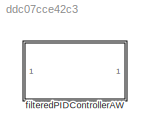
MODEL slx_ddc07cce42c3
KIND library
CONFIG AbsTol = auto
CONFIG EnableMultiTasking = off
CONFIG FixedStep = auto
CONFIG MaxStep = auto
CONFIG MinStep = auto
CONFIG RelTol = 1e-3
CONFIG SampleTimeConstraint = Unconstrained
CONFIG SolverName = VariableStepAuto
CONFIG StartTime = 0.0
CONFIG StopTime = 10.0
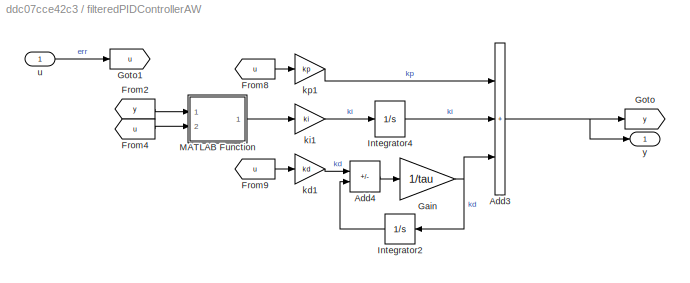
BLOCK [SubSystem] filteredPIDControllerAW
  Ports = [1, 1]
  RequestExecContextInheritance = off
BLOCK [Sum] filteredPIDControllerAW/Add3
  IconShape = rectangular
  Inputs = +++
  Ports = [3, 1]
BLOCK [Sum] filteredPIDControllerAW/Add4
  IconShape = rectangular
  Inputs = +-
  Ports = [2, 1]
BLOCK [From] filteredPIDControllerAW/From2
  GotoTag = y
BLOCK [From] filteredPIDControllerAW/From4
  GotoTag = u
BLOCK [From] filteredPIDControllerAW/From8
  GotoTag = u
BLOCK [From] filteredPIDControllerAW/From9
  GotoTag = u
BLOCK [Gain] filteredPIDControllerAW/Gain
  Gain = 1/tau
BLOCK [Goto] filteredPIDControllerAW/Goto
  GotoTag = y
BLOCK [Goto] filteredPIDControllerAW/Goto1
  GotoTag = u
BLOCK [Integrator] filteredPIDControllerAW/Integrator2
  ContinuousStateAttributes = 'ctrlDerivative'
  Ports = [1, 1]
BLOCK [Integrator] filteredPIDControllerAW/Integrator4
  ContinuousStateAttributes = 'ctrlIntegral'
  Ports = [1, 1]
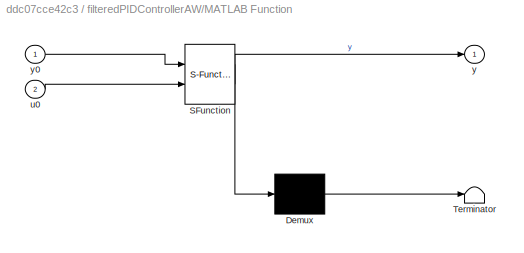
BLOCK [SubSystem] filteredPIDControllerAW/MATLAB Function
  ErrorFcn = Stateflow.Translate.translate
  PermitHierarchicalResolution = ExplicitOnly
  Ports = [2, 1]
  RequestExecContextInheritance = off
  SFBlockType = MATLAB Function
  TreatAsAtomicUnit = on
BLOCK [Demux] filteredPIDControllerAW/MATLAB Function/ Demux 
  Outputs = 1
  Ports = [1, 1]
BLOCK [S-Function] filteredPIDControllerAW/MATLAB Function/ SFunction 
  EnableBusSupport = off
  FunctionName = sf_sfun
  Parameters = cMax,cMin
  PortCounts = [2 2]
  Ports = [2, 2]
  SFcnIsStateOwnerBlock = off
  SFunctionDeploymentMode = off
  Tag = Stateflow S-Function 23
BLOCK [Terminator] filteredPIDControllerAW/MATLAB Function/ Terminator 
BLOCK [Inport] filteredPIDControllerAW/MATLAB Function/u0
  Port = 2
BLOCK [Outport] filteredPIDControllerAW/MATLAB Function/y
BLOCK [Inport] filteredPIDControllerAW/MATLAB Function/y0
BLOCK [Gain] filteredPIDControllerAW/kd1
  Gain = kd
BLOCK [Gain] filteredPIDControllerAW/ki1
  Gain = ki
BLOCK [Gain] filteredPIDControllerAW/kp1
  Gain = kp
BLOCK [Inport] filteredPIDControllerAW/u
  PortDimensions = 1
BLOCK [Outport] filteredPIDControllerAW/y
  PortDimensions = 1
  VectorParamsAs1DForOutWhenUnconnected = off
CHART filteredPIDControllerAW/MATLAB Function states=1 transitions=1
  STATE_LABEL 'eML_blk_kernel()'
  STATE_LABEL 'SCRIPT:\nfunction y = fcn(y0, u0, cMax, cMin)\n\nif y0 > cMax\n    y1 = cMax; \nelseif y0 < cMin\n    y1 = cMin; \nelse\n    y1 = y0; \nend\n\nsat = y0-y1; \naw = exp(-1e5*sat^2); \ny = aw*u0; '
CHART  states=0 transitions=0
